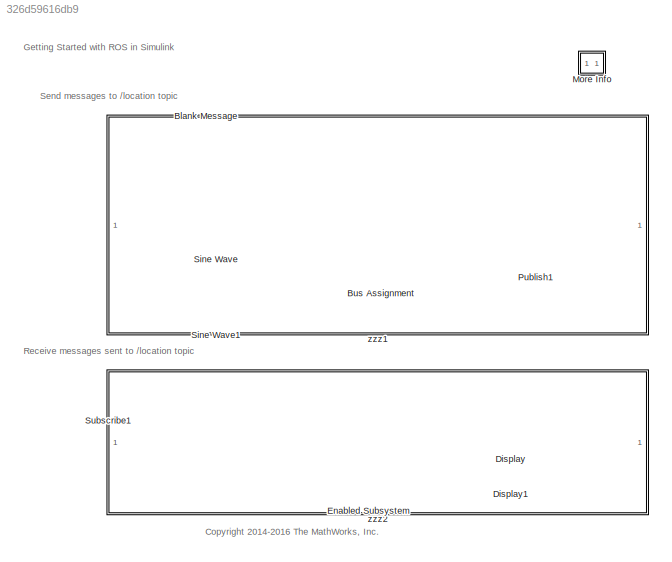
MODEL slx_326d59616db9
KIND model
CONFIG AbsTol = auto
CONFIG EnableMultiTasking = on
CONFIG FixedStep = 0.1
CONFIG MaxStep = auto
CONFIG MinStep = auto
CONFIG RelTol = 1e-3
CONFIG SampleTimeConstraint = Unconstrained
CONFIG Solver = FixedStepDiscrete
CONFIG SolverName = FixedStepDiscrete
CONFIG StartTime = 0.0
CONFIG StopTime = inf
BLOCK [Reference] Blank Message  REF=robotlib/Blank Message
  Ports = [0, 1]
  SourceBlock = robotlib/Blank Message
  SourceLibraryInfo = This block requires Robotics System Toolbox
  SourceProductBaseCode = RO
  SourceProductName = Robotics System Toolbox
  SourceType = ROS Blank Message
BLOCK [BusAssignment] Bus Assignment
  AssignedSignals = X,Y
  Ports = [3, 1]
BLOCK [Display] Display
  Decimation = 1
  Ports = [1]
BLOCK [Display] Display1
  Decimation = 1
  Ports = [1]
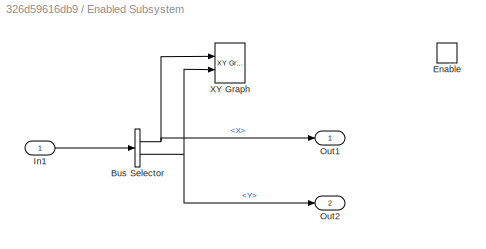
BLOCK [SubSystem] Enabled Subsystem
  Ports = [1, 2, 1]
  RequestExecContextInheritance = off
  Variant = off
BLOCK [BusSelector] Enabled Subsystem/Bus Selector
  DialogController = Simulink.DDGSource_BusSelector
  OutputAsBus = off
  OutputSignals = X,Y
  Ports = [1, 2]
BLOCK [EnablePort] Enabled Subsystem/Enable
  Ports = []
BLOCK [Inport] Enabled Subsystem/In1
  IconDisplay = Port number
BLOCK [Outport] Enabled Subsystem/Out1
  IconDisplay = Port number
BLOCK [Outport] Enabled Subsystem/Out2
  IconDisplay = Port number
  Port = 2
BLOCK [Reference] Enabled Subsystem/XY Graph  REF=simulink/Sinks/XY Graph
  Ports = [2]
  SourceBlock = simulink/Sinks/XY Graph
  SourceProductBaseCode = SL
  SourceProductName = Simulink
  SourceType = XY scope.
BLOCK [SubSystem] More Info
  OpenFcn = showdemo(bdroot(gcb))
  Ports = []
  RequestExecContextInheritance = off
  Variant = off
BLOCK [Reference] Publish1  REF=robotlib/Publish
  Ports = [1]
  SourceBlock = robotlib/Publish
  SourceLibraryInfo = This block requires Robotics System Toolbox
  SourceProductBaseCode = RO
  SourceProductName = Robotics System Toolbox
  SourceType = ROS Publish
BLOCK [Sin] Sine Wave
  Phase = -pi/2
  Ports = [0, 1]
  SampleTime = 0
BLOCK [Sin] Sine Wave1
  Ports = [0, 1]
  SampleTime = 0
BLOCK [Reference] Subscribe1  REF=robotlib/Subscribe
  Ports = [0, 2]
  SourceBlock = robotlib/Subscribe
  SourceLibraryInfo = This block requires Robotics System Toolbox
  SourceProductBaseCode = RO
  SourceProductName = Robotics System Toolbox
  SourceType = ROS Subscribe
BLOCK [SubSystem] zzz1
  OpenFcn = % no-op
  Ports = []
  RequestExecContextInheritance = off
  TreatAsAtomicUnit = on
  Variant = off
BLOCK [SubSystem] zzz2
  OpenFcn = % no-op
  Ports = []
  RequestExecContextInheritance = off
  TreatAsAtomicUnit = on
  Variant = off
ANNOTATION (root): Getting Started with ROS in Simulink
ANNOTATION (root): Receive messages sent to /location topic
ANNOTATION (root): Send messages to /location topic
ANNOTATION (root): <copyright redacted>
LINE Blank Message:1 -> Bus Assignment:1
LINE Bus Assignment:1 -> Publish1:1
NET Enabled Subsystem/Bus Selector:1 -> Enabled Subsystem/Out1:1, Enabled Subsystem/XY Graph:1
NET Enabled Subsystem/Bus Selector:2 -> Enabled Subsystem/Out2:1, Enabled Subsystem/XY Graph:2
LINE Enabled Subsystem/In1:1 -> Enabled Subsystem/Bus Selector:1
LINE Enabled Subsystem:1 -> Display:1
LINE Enabled Subsystem:2 -> Display1:1
LINE Sine Wave1:1 -> Bus Assignment:3
LINE Sine Wave:1 -> Bus Assignment:2
LINE Subscribe1:1 -> Enabled Subsystem:enable
LINE Subscribe1:2 -> Enabled Subsystem:1
note: NET lines group one-source signal fan-out (src -> all destinations, sorted); 1:1 wires keep LINE
